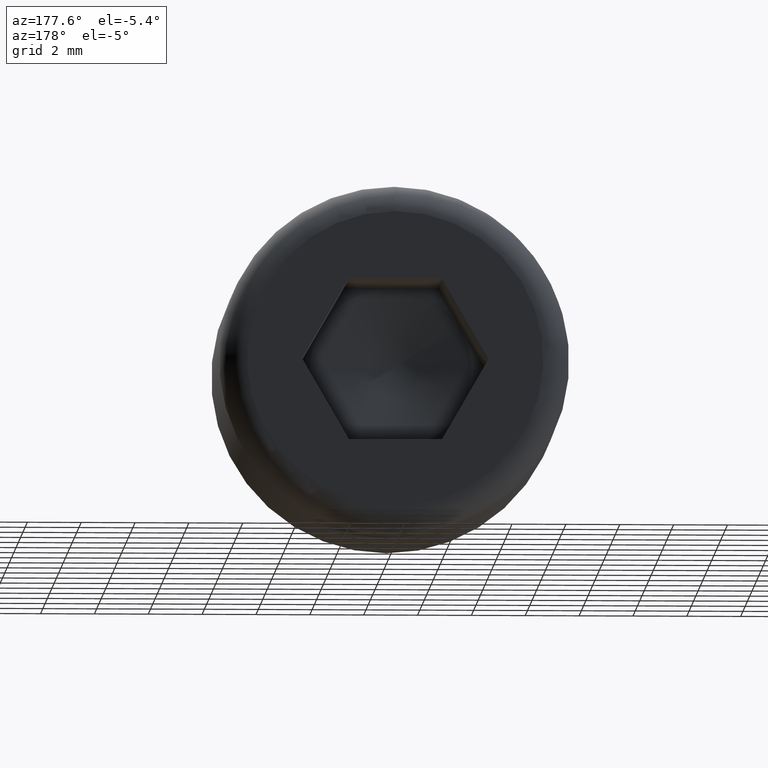
[diagram: clean part render]
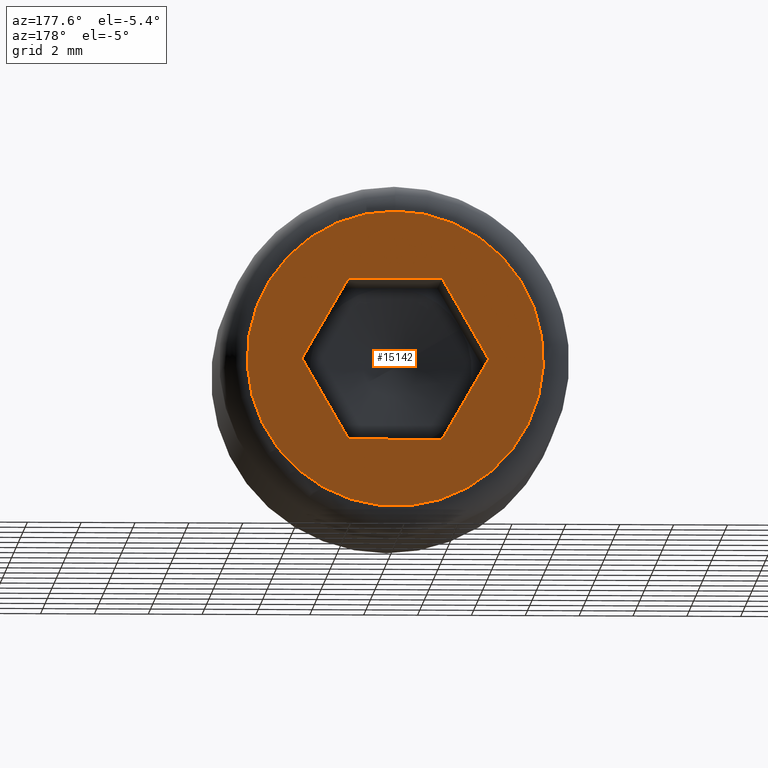
[diagram: same view with one face highlighted and labeled with its STEP entity id]
A machine part, auxiliary view. The second image highlights one B-rep face of the part: STEP entity #15142.
In plain terms, the highlighted planar face has unit normal (0, 1, 0).
Its self-contained STEP definition (entity closure, byte-faithful):
#244 = LINE ( 'NONE', #596, #2229 ) ;
#405 = DIRECTION ( 'NONE',  ( 0.5000000000000001100, 0.0000000000000000000, -0.8660254037844384900 ) ) ;
#474 = EDGE_CURVE ( 'NONE', #5808, #8944, #6096, .T. ) ;
#549 = VECTOR ( 'NONE', #405, 1000.000000000000200 ) ;
#596 = CARTESIAN_POINT ( 'NONE',  ( 1.732050807568876300, 8.000000000000000000, -3.000000000000000000 ) ) ;
#1033 = DIRECTION ( 'NONE',  ( 0.0000000000000000000, 1.000000000000000000, 0.0000000000000000000 ) ) ;
#1710 = CARTESIAN_POINT ( 'NONE',  ( -3.464101615137754400, 8.000000000000000000, -4.440650973077132600E-016 ) ) ;
#2229 = VECTOR ( 'NONE', #3265, 1000.000000000000000 ) ;
#2320 = CARTESIAN_POINT ( 'NONE',  ( 0.0000000000000000000, 8.000000000000000000, 5.500000000000000900 ) ) ;
#2613 = LINE ( 'NONE', #10575, #7769 ) ;
#3265 = DIRECTION ( 'NONE',  ( -1.000000000000000000, 0.0000000000000000000, 1.251928832280966200E-016 ) ) ;
#3468 = CARTESIAN_POINT ( 'NONE',  ( -3.464101615137754400, 8.000000000000000000, -4.440650973077132600E-016 ) ) ;
#3780 = EDGE_LOOP ( 'NONE', ( #16430, #14655, #8947, #11111, #11546, #13712 ) ) ;
#4345 = FACE_OUTER_BOUND ( 'NONE', #6959, .T. ) ;
#4857 = CARTESIAN_POINT ( 'NONE',  ( 1.732050807568876300, 8.000000000000000000, -3.000000000000000000 ) ) ;
#4868 = CARTESIAN_POINT ( 'NONE',  ( -1.732050807568876100, 8.000000000000000000, 3.000000000000000000 ) ) ;
#4903 = EDGE_CURVE ( 'NONE', #8944, #8815, #15953, .T. ) ;
#4928 = EDGE_CURVE ( 'NONE', #10675, #10675, #12606, .T. ) ;
#5255 = VECTOR ( 'NONE', #7501, 1000.000000000000200 ) ;
#5808 = VERTEX_POINT ( 'NONE', #9606 ) ;
#5837 = CARTESIAN_POINT ( 'NONE',  ( 0.0000000000000000000, 8.000000000000000000, 0.0000000000000000000 ) ) ;
#6049 = CARTESIAN_POINT ( 'NONE',  ( -1.732050807568877400, 8.000000000000000000, -2.999999999999999600 ) ) ;
#6076 = CARTESIAN_POINT ( 'NONE',  ( 0.0000000000000000000, 8.000000000000000000, 0.0000000000000000000 ) ) ;
#6096 = LINE ( 'NONE', #11089, #549 ) ;
#6486 = EDGE_CURVE ( 'NONE', #12748, #13951, #15121, .T. ) ;
#6788 = CARTESIAN_POINT ( 'NONE',  ( -1.732050807568876100, 8.000000000000000000, 3.000000000000000000 ) ) ;
#6959 = EDGE_LOOP ( 'NONE', ( #10010 ) ) ;
#7475 = VERTEX_POINT ( 'NONE', #6049 ) ;
#7501 = DIRECTION ( 'NONE',  ( 0.5000000000000001100, 0.0000000000000000000, 0.8660254037844384900 ) ) ;
#7686 = AXIS2_PLACEMENT_3D ( 'NONE', #6076, #1033, #11053 ) ;
#7769 = VECTOR ( 'NONE', #15922, 1000.000000000000200 ) ;
#8229 = CARTESIAN_POINT ( 'NONE',  ( 3.464101615137755300, 8.000000000000000000, 8.032070669435346800E-016 ) ) ;
#8815 = VERTEX_POINT ( 'NONE', #4857 ) ;
#8817 = DIRECTION ( 'NONE',  ( 1.000000000000000000, 0.0000000000000000000, 0.0000000000000000000 ) ) ;
#8944 = VERTEX_POINT ( 'NONE', #11742 ) ;
#8947 = ORIENTED_EDGE ( 'NONE', *, *, #11427, .F. ) ;
#9606 = CARTESIAN_POINT ( 'NONE',  ( 1.732050807568877900, 8.000000000000000000, 3.000000000000000000 ) ) ;
#9817 = EDGE_CURVE ( 'NONE', #8815, #7475, #244, .T. ) ;
#10010 = ORIENTED_EDGE ( 'NONE', *, *, #4928, .T. ) ;
#10575 = CARTESIAN_POINT ( 'NONE',  ( -1.732050807568877400, 8.000000000000000000, -2.999999999999999600 ) ) ;
#10675 = VERTEX_POINT ( 'NONE', #2320 ) ;
#10760 = DIRECTION ( 'NONE',  ( 0.0000000000000000000, 1.000000000000000000, 0.0000000000000000000 ) ) ;
#10854 = DIRECTION ( 'NONE',  ( -0.5000000000000002200, 0.0000000000000000000, -0.8660254037844384900 ) ) ;
#11053 = DIRECTION ( 'NONE',  ( 0.0000000000000000000, -0.0000000000000000000, 1.000000000000000000 ) ) ;
#11089 = CARTESIAN_POINT ( 'NONE',  ( 1.732050807568877600, 8.000000000000000000, 3.000000000000000000 ) ) ;
#11107 = PLANE ( 'NONE',  #7686 ) ;
#11111 = ORIENTED_EDGE ( 'NONE', *, *, #9817, .F. ) ;
#11427 = EDGE_CURVE ( 'NONE', #7475, #12748, #2613, .T. ) ;
#11546 = ORIENTED_EDGE ( 'NONE', *, *, #4903, .F. ) ;
#11742 = CARTESIAN_POINT ( 'NONE',  ( 3.464101615137755300, 8.000000000000000000, 8.032070669435346800E-016 ) ) ;
#11812 = VECTOR ( 'NONE', #10854, 1000.000000000000200 ) ;
#11976 = DIRECTION ( 'NONE',  ( 0.0000000000000000000, 0.0000000000000000000, 1.000000000000000000 ) ) ;
#12075 = LINE ( 'NONE', #4868, #14623 ) ;
#12606 = CIRCLE ( 'NONE', #16176, 5.500000000000000900 ) ;
#12748 = VERTEX_POINT ( 'NONE', #1710 ) ;
#13712 = ORIENTED_EDGE ( 'NONE', *, *, #474, .F. ) ;
#13951 = VERTEX_POINT ( 'NONE', #6788 ) ;
#14623 = VECTOR ( 'NONE', #8817, 1000.000000000000000 ) ;
#14655 = ORIENTED_EDGE ( 'NONE', *, *, #6486, .F. ) ;
#15121 = LINE ( 'NONE', #3468, #5255 ) ;
#15142 = ADVANCED_FACE ( 'NONE', ( #15829, #4345 ), #11107, .T. ) ;
#15829 = FACE_BOUND ( 'NONE', #3780, .T. ) ;
#15922 = DIRECTION ( 'NONE',  ( -0.5000000000000000000, 0.0000000000000000000, 0.8660254037844386000 ) ) ;
#15953 = LINE ( 'NONE', #8229, #11812 ) ;
#16176 = AXIS2_PLACEMENT_3D ( 'NONE', #5837, #10760, #11976 ) ;
#16283 = EDGE_CURVE ( 'NONE', #13951, #5808, #12075, .T. ) ;
#16430 = ORIENTED_EDGE ( 'NONE', *, *, #16283, .F. ) ;